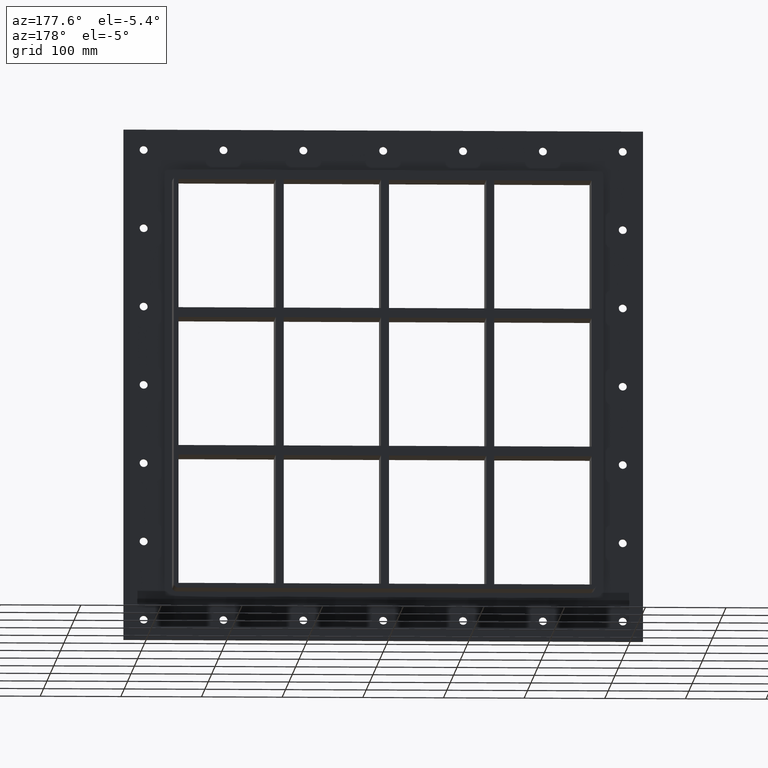
[diagram: clean part render]
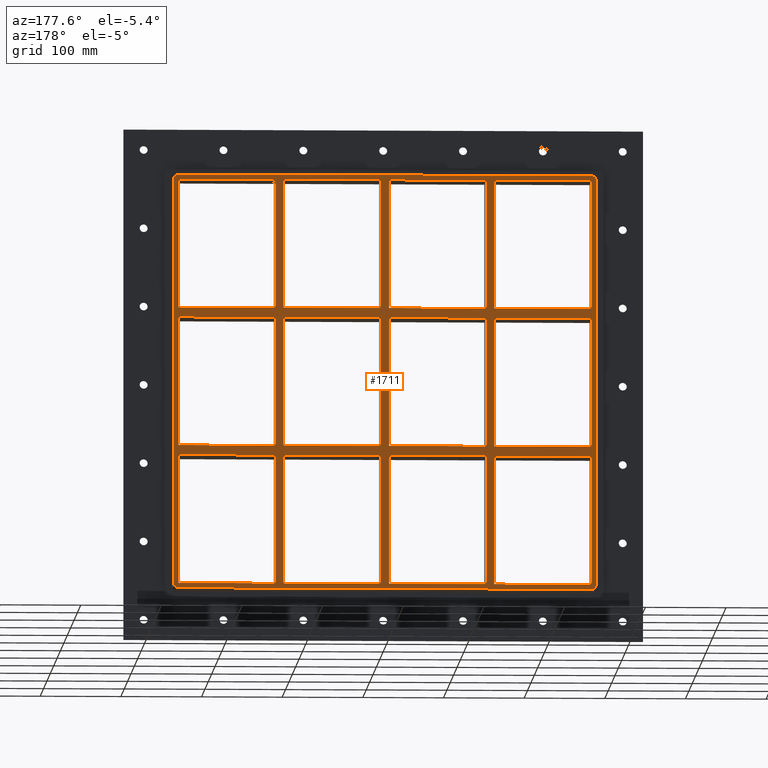
[diagram: same view with one face highlighted and labeled with its STEP entity id]
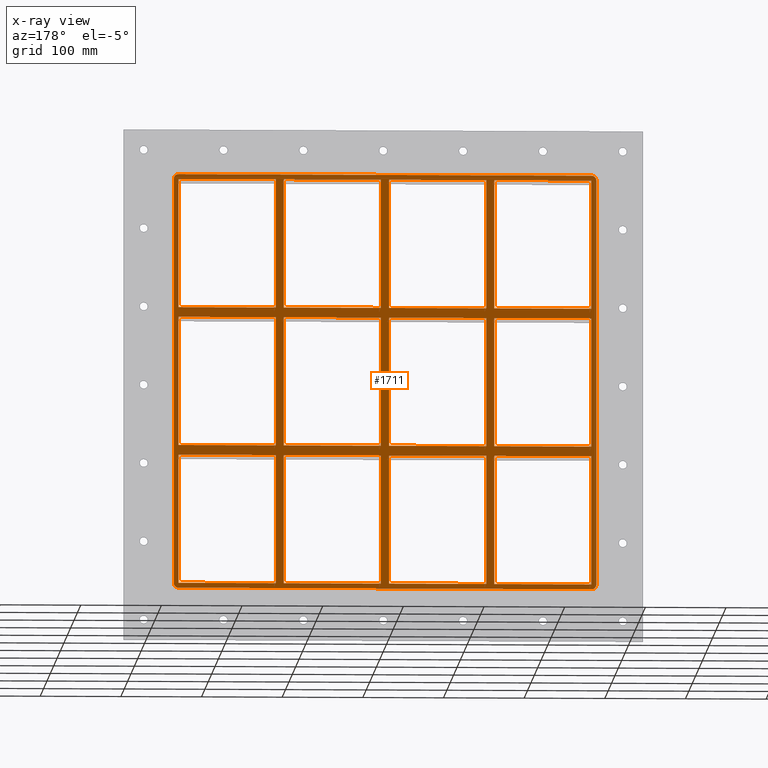
[diagram: x-ray of the same camera — body ghosted, the highlighted face saturated]
A machine part, auxiliary view. The second image highlights one B-rep face of the part: STEP entity #1711.
The next image is the same camera in x-ray: the body ghosted, the highlighted face saturated — about 0% of this face is hidden behind the body in this view.
In plain terms, the highlighted planar face has unit normal (0, 1, 0).
Its self-contained STEP definition (entity closure, byte-faithful):
#747=CARTESIAN_POINT('',(-135.50000000000136,57.0,79.749999999990564));
#748=VERTEX_POINT('',#747);
#763=CARTESIAN_POINT('',(-255.99999999999972,57.0,79.749999999990536));
#764=VERTEX_POINT('',#763);
#771=CARTESIAN_POINT('',(-135.50000000000136,57.0,79.749999999990564));
#772=DIRECTION('',(-1.0,0.0,0.0));
#773=VECTOR('',#772,120.49999999999841);
#774=LINE('',#771,#773);
#775=EDGE_CURVE('',#748,#764,#774,.T.);
#787=CARTESIAN_POINT('',(-5.00000000000135,57.0,79.749999999990621));
#788=VERTEX_POINT('',#787);
#803=CARTESIAN_POINT('',(-125.49999999999272,57.0,79.749999999990564));
#804=VERTEX_POINT('',#803);
#811=CARTESIAN_POINT('',(-5.000000000001364,57.0,79.749999999990621));
#812=DIRECTION('',(-1.0,0.0,0.0));
#813=VECTOR('',#812,120.49999999999136);
#814=LINE('',#811,#813);
#815=EDGE_CURVE('',#788,#804,#814,.T.);
#825=CARTESIAN_POINT('',(135.50000000000728,57.0,79.749999999990663));
#826=VERTEX_POINT('',#825);
#835=CARTESIAN_POINT('',(256.00000000000364,57.0,79.749999999990706));
#836=VERTEX_POINT('',#835);
#837=CARTESIAN_POINT('',(256.00000000000364,57.0,79.749999999990706));
#838=DIRECTION('',(-1.0,0.0,0.0));
#839=VECTOR('',#838,120.49999999999636);
#840=LINE('',#837,#839);
#841=EDGE_CURVE('',#836,#826,#840,.T.);
#867=CARTESIAN_POINT('',(125.49999999999864,57.0,79.749999999990663));
#868=VERTEX_POINT('',#867);
#883=CARTESIAN_POINT('',(5.000000000007283,57.0,79.749999999990621));
#884=VERTEX_POINT('',#883);
#891=CARTESIAN_POINT('',(125.49999999999864,57.0,79.749999999990663));
#892=DIRECTION('',(-1.0,0.0,0.0));
#893=VECTOR('',#892,120.49999999999136);
#894=LINE('',#891,#893);
#895=EDGE_CURVE('',#868,#884,#894,.T.);
#905=CARTESIAN_POINT('',(-135.50000000000136,57.0,91.750000000000043));
#906=VERTEX_POINT('',#905);
#915=CARTESIAN_POINT('',(-255.99999999999972,57.0,91.750000000000085));
#916=VERTEX_POINT('',#915);
#917=CARTESIAN_POINT('',(-255.99999999999972,57.0,91.750000000000085));
#918=DIRECTION('',(1.0,0.0,0.0));
#919=VECTOR('',#918,120.49999999999835);
#920=LINE('',#917,#919);
#921=EDGE_CURVE('',#916,#906,#920,.T.);
#947=CARTESIAN_POINT('',(135.50000000000728,57.0,91.750000000000085));
#948=VERTEX_POINT('',#947);
#963=CARTESIAN_POINT('',(255.99999999999989,57.0,91.750000000000085));
#964=VERTEX_POINT('',#963);
#971=CARTESIAN_POINT('',(135.50000000000733,57.0,91.750000000000085));
#972=DIRECTION('',(1.0,0.0,0.0));
#973=VECTOR('',#972,120.49999999999255);
#974=LINE('',#971,#973);
#975=EDGE_CURVE('',#948,#964,#974,.T.);
#985=CARTESIAN_POINT('',(-5.00000000000135,57.0,91.750000000000085));
#986=VERTEX_POINT('',#985);
#995=CARTESIAN_POINT('',(-125.49999999999272,57.0,91.750000000000085));
#996=VERTEX_POINT('',#995);
#997=CARTESIAN_POINT('',(-125.49999999999272,57.0,91.750000000000085));
#998=DIRECTION('',(1.0,0.0,0.0));
#999=VECTOR('',#998,120.49999999999139);
#1000=LINE('',#997,#999);
#1001=EDGE_CURVE('',#996,#986,#1000,.T.);
#1025=CARTESIAN_POINT('',(125.49999999999862,57.0,91.750000000000085));
#1026=VERTEX_POINT('',#1025);
#1035=CARTESIAN_POINT('',(5.000000000007283,57.0,91.750000000000085));
#1036=VERTEX_POINT('',#1035);
#1037=CARTESIAN_POINT('',(5.000000000007276,57.0,91.750000000000085));
#1038=DIRECTION('',(1.0,0.0,0.0));
#1039=VECTOR('',#1038,120.49999999999136);
#1040=LINE('',#1037,#1039);
#1041=EDGE_CURVE('',#1036,#1026,#1040,.T.);
#1066=CARTESIAN_POINT('',(-256.0,57.0,251.25));
#1067=VERTEX_POINT('',#1066);
#1068=CARTESIAN_POINT('',(-256.00000000000006,57.0,251.24999999999997));
#1069=DIRECTION('',(0.0,0.0,-1.0));
#1070=VECTOR('',#1069,159.49999999999989);
#1071=LINE('',#1068,#1070);
#1072=EDGE_CURVE('',#1067,#916,#1071,.T.);
#1097=CARTESIAN_POINT('',(255.99999999999989,57.0,-79.749999999999943));
#1098=VERTEX_POINT('',#1097);
#1099=CARTESIAN_POINT('',(256.0,57.0,-79.749999999999943));
#1100=DIRECTION('',(0.0,0.0,1.0));
#1101=VECTOR('',#1100,159.49999999999065);
#1102=LINE('',#1099,#1101);
#1103=EDGE_CURVE('',#1098,#836,#1102,.T.);
#1136=CARTESIAN_POINT('',(256.0,57.0,251.25));
#1137=VERTEX_POINT('',#1136);
#1144=CARTESIAN_POINT('',(256.0,57.0,91.750000000000085));
#1145=DIRECTION('',(0.0,0.0,1.0));
#1146=VECTOR('',#1145,159.49999999999991);
#1147=LINE('',#1144,#1146);
#1148=EDGE_CURVE('',#964,#1137,#1147,.T.);
#1167=CARTESIAN_POINT('',(125.49999999999862,57.0,251.25));
#1168=VERTEX_POINT('',#1167);
#1175=CARTESIAN_POINT('',(125.49999999999865,57.0,91.750000000000057));
#1176=DIRECTION('',(0.0,0.0,1.0));
#1177=VECTOR('',#1176,159.49999999999994);
#1178=LINE('',#1175,#1177);
#1179=EDGE_CURVE('',#1026,#1168,#1178,.T.);
#1190=CARTESIAN_POINT('',(135.50000000000728,57.0,251.25));
#1191=VERTEX_POINT('',#1190);
#1192=CARTESIAN_POINT('',(135.50000000000728,57.0,251.25));
#1193=DIRECTION('',(0.0,0.0,-1.0));
#1194=VECTOR('',#1193,159.49999999999991);
#1195=LINE('',#1192,#1194);
#1196=EDGE_CURVE('',#1191,#948,#1195,.T.);
#1229=CARTESIAN_POINT('',(-5.000000000001386,57.0,251.25));
#1230=VERTEX_POINT('',#1229);
#1237=CARTESIAN_POINT('',(-5.000000000001363,57.0,91.750000000000057));
#1238=DIRECTION('',(0.0,0.0,1.0));
#1239=VECTOR('',#1238,159.49999999999994);
#1240=LINE('',#1237,#1239);
#1241=EDGE_CURVE('',#986,#1230,#1240,.T.);
#1252=CARTESIAN_POINT('',(5.000000000007283,57.0,251.25));
#1253=VERTEX_POINT('',#1252);
#1254=CARTESIAN_POINT('',(5.000000000007283,57.0,251.25));
#1255=DIRECTION('',(0.0,0.0,-1.0));
#1256=VECTOR('',#1255,159.49999999999991);
#1257=LINE('',#1254,#1256);
#1258=EDGE_CURVE('',#1253,#1036,#1257,.T.);
#1291=CARTESIAN_POINT('',(-135.50000000000139,57.0,251.25));
#1292=VERTEX_POINT('',#1291);
#1299=CARTESIAN_POINT('',(-135.50000000000136,57.0,91.750000000000057));
#1300=DIRECTION('',(0.0,0.0,1.0));
#1301=VECTOR('',#1300,159.49999999999994);
#1302=LINE('',#1299,#1301);
#1303=EDGE_CURVE('',#906,#1292,#1302,.T.);
#1314=CARTESIAN_POINT('',(-135.50000000000134,57.0,-79.749999999999943));
#1315=VERTEX_POINT('',#1314);
#1316=CARTESIAN_POINT('',(-135.50000000000134,57.0,-79.749999999999943));
#1317=DIRECTION('',(0.0,0.0,1.0));
#1318=VECTOR('',#1317,159.49999999999051);
#1319=LINE('',#1316,#1318);
#1320=EDGE_CURVE('',#1315,#748,#1319,.T.);
#1345=CARTESIAN_POINT('',(-125.49999999999272,57.0,251.25));
#1346=VERTEX_POINT('',#1345);
#1347=CARTESIAN_POINT('',(-125.49999999999272,57.0,251.25));
#1348=DIRECTION('',(0.0,0.0,-1.0));
#1349=VECTOR('',#1348,159.49999999999991);
#1350=LINE('',#1347,#1349);
#1351=EDGE_CURVE('',#1346,#996,#1350,.T.);
#1370=CARTESIAN_POINT('',(-1.642082E-014,57.0,0.0));
#1371=DIRECTION('',(0.0,1.0,0.0));
#1372=DIRECTION('',(0.0,0.0,1.0));
#1373=AXIS2_PLACEMENT_3D('',#1370,#1371,#1372);
#1374=PLANE('',#1373);
#1375=CARTESIAN_POINT('',(256.0,57.0,-257.25));
#1376=VERTEX_POINT('',#1375);
#1377=CARTESIAN_POINT('',(262.0,57.0,-251.25));
#1378=VERTEX_POINT('',#1377);
#1379=CARTESIAN_POINT('',(256.0,57.0,-251.25));
#1380=DIRECTION('',(0.0,-1.0,0.0));
#1381=DIRECTION('',(0.707106781186548,0.0,-0.707106781186548));
#1382=AXIS2_PLACEMENT_3D('',#1379,#1380,#1381);
#1383=CIRCLE('',#1382,6.000000000000002);
#1384=EDGE_CURVE('',#1376,#1378,#1383,.T.);
#1385=ORIENTED_EDGE('',*,*,#1384,.F.);
#1386=CARTESIAN_POINT('',(-256.00000000000006,57.0,-257.25));
#1387=VERTEX_POINT('',#1386);
#1388=CARTESIAN_POINT('',(256.0,57.0,-257.25));
#1389=DIRECTION('',(-1.0,0.0,0.0));
#1390=VECTOR('',#1389,512.0);
#1391=LINE('',#1388,#1390);
#1392=EDGE_CURVE('',#1376,#1387,#1391,.T.);
#1393=ORIENTED_EDGE('',*,*,#1392,.T.);
#1394=CARTESIAN_POINT('',(-262.00000000000006,57.0,-251.25));
#1395=VERTEX_POINT('',#1394);
#1396=CARTESIAN_POINT('',(-256.00000000000006,57.0,-251.25));
#1397=DIRECTION('',(0.0,-1.0,0.0));
#1398=DIRECTION('',(-0.707106781186548,0.0,-0.707106781186548));
#1399=AXIS2_PLACEMENT_3D('',#1396,#1397,#1398);
#1400=CIRCLE('',#1399,6.000000000000002);
#1401=EDGE_CURVE('',#1395,#1387,#1400,.T.);
#1402=ORIENTED_EDGE('',*,*,#1401,.F.);
#1403=CARTESIAN_POINT('',(-262.00000000000006,57.0,251.25));
#1404=VERTEX_POINT('',#1403);
#1405=CARTESIAN_POINT('',(-262.00000000000006,57.0,-251.25));
#1406=DIRECTION('',(0.0,0.0,1.0));
#1407=VECTOR('',#1406,502.5);
#1408=LINE('',#1405,#1407);
#1409=EDGE_CURVE('',#1395,#1404,#1408,.T.);
#1410=ORIENTED_EDGE('',*,*,#1409,.T.);
#1411=CARTESIAN_POINT('',(-256.00000000000011,57.0,257.25));
#1412=VERTEX_POINT('',#1411);
#1413=CARTESIAN_POINT('',(-256.00000000000011,57.0,251.25));
#1414=DIRECTION('',(0.0,-1.0,0.0));
#1415=DIRECTION('',(-0.707106781186543,0.0,0.707106781186552));
#1416=AXIS2_PLACEMENT_3D('',#1413,#1414,#1415);
#1417=CIRCLE('',#1416,6.000000000000001);
#1418=EDGE_CURVE('',#1412,#1404,#1417,.T.);
#1419=ORIENTED_EDGE('',*,*,#1418,.F.);
#1420=CARTESIAN_POINT('',(256.0,57.0,257.25));
#1421=VERTEX_POINT('',#1420);
#1422=CARTESIAN_POINT('',(-256.00000000000006,57.0,257.25));
#1423=DIRECTION('',(1.0,0.0,0.0));
#1424=VECTOR('',#1423,512.0);
#1425=LINE('',#1422,#1424);
#1426=EDGE_CURVE('',#1412,#1421,#1425,.T.);
#1427=ORIENTED_EDGE('',*,*,#1426,.T.);
#1428=CARTESIAN_POINT('',(262.0,57.0,251.25));
#1429=VERTEX_POINT('',#1428);
#1430=CARTESIAN_POINT('',(256.0,57.0,251.25));
#1431=DIRECTION('',(0.0,-1.0,0.0));
#1432=DIRECTION('',(0.707106781186548,0.0,0.707106781186548));
#1433=AXIS2_PLACEMENT_3D('',#1430,#1431,#1432);
#1434=CIRCLE('',#1433,6.000000000000002);
#1435=EDGE_CURVE('',#1429,#1421,#1434,.T.);
#1436=ORIENTED_EDGE('',*,*,#1435,.F.);
#1437=CARTESIAN_POINT('',(262.0,57.0,251.25));
#1438=DIRECTION('',(0.0,0.0,-1.0));
#1439=VECTOR('',#1438,502.5);
#1440=LINE('',#1437,#1439);
#1441=EDGE_CURVE('',#1429,#1378,#1440,.T.);
#1442=ORIENTED_EDGE('',*,*,#1441,.T.);
#1443=EDGE_LOOP('',(#1385,#1393,#1402,#1410,#1419,#1427,#1436,#1442));
#1444=FACE_OUTER_BOUND('',#1443,.T.);
#1445=CARTESIAN_POINT('',(-255.99999999999972,57.0,-79.749999999999943));
#1446=VERTEX_POINT('',#1445);
#1447=CARTESIAN_POINT('',(-256.00000000000006,57.0,79.749999999990536));
#1448=DIRECTION('',(0.0,0.0,-1.0));
#1449=VECTOR('',#1448,159.49999999999048);
#1450=LINE('',#1447,#1449);
#1451=EDGE_CURVE('',#764,#1446,#1450,.T.);
#1452=ORIENTED_EDGE('',*,*,#1451,.T.);
#1453=CARTESIAN_POINT('',(-255.99999999999972,57.0,-79.749999999999943));
#1454=DIRECTION('',(1.0,0.0,0.0));
#1455=VECTOR('',#1454,120.49999999999841);
#1456=LINE('',#1453,#1455);
#1457=EDGE_CURVE('',#1446,#1315,#1456,.T.);
#1458=ORIENTED_EDGE('',*,*,#1457,.T.);
#1459=ORIENTED_EDGE('',*,*,#1320,.T.);
#1460=ORIENTED_EDGE('',*,*,#775,.T.);
#1461=EDGE_LOOP('',(#1452,#1458,#1459,#1460));
#1462=FACE_BOUND('',#1461,.T.);
#1463=ORIENTED_EDGE('',*,*,#1148,.T.);
#1464=CARTESIAN_POINT('',(256.0,57.0,251.25));
#1465=DIRECTION('',(-1.0,0.0,0.0));
#1466=VECTOR('',#1465,120.4999999999927);
#1467=LINE('',#1464,#1466);
#1468=EDGE_CURVE('',#1137,#1191,#1467,.T.);
#1469=ORIENTED_EDGE('',*,*,#1468,.T.);
#1470=ORIENTED_EDGE('',*,*,#1196,.T.);
#1471=ORIENTED_EDGE('',*,*,#975,.T.);
#1472=EDGE_LOOP('',(#1463,#1469,#1470,#1471));
#1473=FACE_BOUND('',#1472,.T.);
#1474=ORIENTED_EDGE('',*,*,#1179,.T.);
#1475=CARTESIAN_POINT('',(125.49999999999864,57.0,251.25));
#1476=DIRECTION('',(-1.0,0.0,0.0));
#1477=VECTOR('',#1476,120.49999999999136);
#1478=LINE('',#1475,#1477);
#1479=EDGE_CURVE('',#1168,#1253,#1478,.T.);
#1480=ORIENTED_EDGE('',*,*,#1479,.T.);
#1481=ORIENTED_EDGE('',*,*,#1258,.T.);
#1482=ORIENTED_EDGE('',*,*,#1041,.T.);
#1483=EDGE_LOOP('',(#1474,#1480,#1481,#1482));
#1484=FACE_BOUND('',#1483,.T.);
#1485=ORIENTED_EDGE('',*,*,#1241,.T.);
#1486=CARTESIAN_POINT('',(-5.000000000001393,57.0,251.25));
#1487=DIRECTION('',(-1.0,0.0,0.0));
#1488=VECTOR('',#1487,120.49999999999133);
#1489=LINE('',#1486,#1488);
#1490=EDGE_CURVE('',#1230,#1346,#1489,.T.);
#1491=ORIENTED_EDGE('',*,*,#1490,.T.);
#1492=ORIENTED_EDGE('',*,*,#1351,.T.);
#1493=ORIENTED_EDGE('',*,*,#1001,.T.);
#1494=EDGE_LOOP('',(#1485,#1491,#1492,#1493));
#1495=FACE_BOUND('',#1494,.T.);
#1496=ORIENTED_EDGE('',*,*,#841,.T.);
#1497=CARTESIAN_POINT('',(135.50000000000728,57.0,-79.749999999999943));
#1498=VERTEX_POINT('',#1497);
#1499=CARTESIAN_POINT('',(135.50000000000728,57.0,79.749999999990678));
#1500=DIRECTION('',(0.0,0.0,-1.0));
#1501=VECTOR('',#1500,159.49999999999062);
#1502=LINE('',#1499,#1501);
#1503=EDGE_CURVE('',#826,#1498,#1502,.T.);
#1504=ORIENTED_EDGE('',*,*,#1503,.T.);
#1505=CARTESIAN_POINT('',(135.50000000000733,57.0,-79.749999999999943));
#1506=DIRECTION('',(1.0,0.0,0.0));
#1507=VECTOR('',#1506,120.49999999999255);
#1508=LINE('',#1505,#1507);
#1509=EDGE_CURVE('',#1498,#1098,#1508,.T.);
#1510=ORIENTED_EDGE('',*,*,#1509,.T.);
#1511=ORIENTED_EDGE('',*,*,#1103,.T.);
#1512=EDGE_LOOP('',(#1496,#1504,#1510,#1511));
#1513=FACE_BOUND('',#1512,.T.);
#1514=ORIENTED_EDGE('',*,*,#895,.T.);
#1515=CARTESIAN_POINT('',(5.000000000007283,57.0,-79.749999999999943));
#1516=VERTEX_POINT('',#1515);
#1517=CARTESIAN_POINT('',(5.000000000007283,57.0,79.749999999990621));
#1518=DIRECTION('',(0.0,0.0,-1.0));
#1519=VECTOR('',#1518,159.49999999999056);
#1520=LINE('',#1517,#1519);
#1521=EDGE_CURVE('',#884,#1516,#1520,.T.);
#1522=ORIENTED_EDGE('',*,*,#1521,.T.);
#1523=CARTESIAN_POINT('',(125.49999999999868,57.0,-79.749999999999943));
#1524=VERTEX_POINT('',#1523);
#1525=CARTESIAN_POINT('',(5.000000000007276,57.0,-79.749999999999943));
#1526=DIRECTION('',(1.0,0.0,0.0));
#1527=VECTOR('',#1526,120.49999999999142);
#1528=LINE('',#1525,#1527);
#1529=EDGE_CURVE('',#1516,#1524,#1528,.T.);
#1530=ORIENTED_EDGE('',*,*,#1529,.T.);
#1531=CARTESIAN_POINT('',(125.49999999999866,57.0,-79.749999999999943));
#1532=DIRECTION('',(0.0,0.0,1.0));
#1533=VECTOR('',#1532,159.49999999999056);
#1534=LINE('',#1531,#1533);
#1535=EDGE_CURVE('',#1524,#868,#1534,.T.);
#1536=ORIENTED_EDGE('',*,*,#1535,.T.);
#1537=EDGE_LOOP('',(#1514,#1522,#1530,#1536));
#1538=FACE_BOUND('',#1537,.T.);
#1539=ORIENTED_EDGE('',*,*,#815,.T.);
#1540=CARTESIAN_POINT('',(-125.49999999999272,57.0,-79.749999999999943));
#1541=VERTEX_POINT('',#1540);
#1542=CARTESIAN_POINT('',(-125.49999999999272,57.0,79.749999999990564));
#1543=DIRECTION('',(0.0,0.0,-1.0));
#1544=VECTOR('',#1543,159.49999999999051);
#1545=LINE('',#1542,#1544);
#1546=EDGE_CURVE('',#804,#1541,#1545,.T.);
#1547=ORIENTED_EDGE('',*,*,#1546,.T.);
#1548=CARTESIAN_POINT('',(-5.000000000001339,57.0,-79.749999999999943));
#1549=VERTEX_POINT('',#1548);
#1550=CARTESIAN_POINT('',(-125.49999999999272,57.0,-79.749999999999943));
#1551=DIRECTION('',(1.0,0.0,0.0));
#1552=VECTOR('',#1551,120.49999999999139);
#1553=LINE('',#1550,#1552);
#1554=EDGE_CURVE('',#1541,#1549,#1553,.T.);
#1555=ORIENTED_EDGE('',*,*,#1554,.T.);
#1556=CARTESIAN_POINT('',(-5.000000000001339,57.0,-79.749999999999943));
#1557=DIRECTION('',(0.0,0.0,1.0));
#1558=VECTOR('',#1557,159.49999999999056);
#1559=LINE('',#1556,#1558);
#1560=EDGE_CURVE('',#1549,#788,#1559,.T.);
#1561=ORIENTED_EDGE('',*,*,#1560,.T.);
#1562=EDGE_LOOP('',(#1539,#1547,#1555,#1561));
#1563=FACE_BOUND('',#1562,.T.);
#1564=CARTESIAN_POINT('',(-255.99999999999972,57.0,-91.750000000009493));
#1565=VERTEX_POINT('',#1564);
#1566=CARTESIAN_POINT('',(-256.0,57.0,-251.25000000000006));
#1567=VERTEX_POINT('',#1566);
#1568=CARTESIAN_POINT('',(-256.00000000000006,57.0,-91.750000000009493));
#1569=DIRECTION('',(0.0,0.0,-1.0));
#1570=VECTOR('',#1569,159.49999999999056);
#1571=LINE('',#1568,#1570);
#1572=EDGE_CURVE('',#1565,#1567,#1571,.T.);
#1573=ORIENTED_EDGE('',*,*,#1572,.T.);
#1574=CARTESIAN_POINT('',(-135.50000000000131,57.0,-251.25000000000006));
#1575=VERTEX_POINT('',#1574);
#1576=CARTESIAN_POINT('',(-256.00000000000006,57.0,-251.25000000000006));
#1577=DIRECTION('',(1.0,0.0,0.0));
#1578=VECTOR('',#1577,120.49999999999875);
#1579=LINE('',#1576,#1578);
#1580=EDGE_CURVE('',#1567,#1575,#1579,.T.);
#1581=ORIENTED_EDGE('',*,*,#1580,.T.);
#1582=CARTESIAN_POINT('',(-135.50000000000131,57.0,-91.750000000009464));
#1583=VERTEX_POINT('',#1582);
#1584=CARTESIAN_POINT('',(-135.50000000000131,57.0,-251.25000000000006));
#1585=DIRECTION('',(0.0,0.0,1.0));
#1586=VECTOR('',#1585,159.49999999999062);
#1587=LINE('',#1584,#1586);
#1588=EDGE_CURVE('',#1575,#1583,#1587,.T.);
#1589=ORIENTED_EDGE('',*,*,#1588,.T.);
#1590=CARTESIAN_POINT('',(-135.50000000000131,57.0,-91.750000000009464));
#1591=DIRECTION('',(-1.0,0.0,0.0));
#1592=VECTOR('',#1591,120.49999999999847);
#1593=LINE('',#1590,#1592);
#1594=EDGE_CURVE('',#1583,#1565,#1593,.T.);
#1595=ORIENTED_EDGE('',*,*,#1594,.T.);
#1596=EDGE_LOOP('',(#1573,#1581,#1589,#1595));
#1597=FACE_BOUND('',#1596,.T.);
#1598=CARTESIAN_POINT('',(-5.000000000001315,57.0,-251.25000000000006));
#1599=VERTEX_POINT('',#1598);
#1600=CARTESIAN_POINT('',(-5.000000000001337,57.0,-91.750000000009408));
#1601=VERTEX_POINT('',#1600);
#1602=CARTESIAN_POINT('',(-5.000000000001315,57.0,-251.25000000000006));
#1603=DIRECTION('',(0.0,0.0,1.0));
#1604=VECTOR('',#1603,159.49999999999068);
#1605=LINE('',#1602,#1604);
#1606=EDGE_CURVE('',#1599,#1601,#1605,.T.);
#1607=ORIENTED_EDGE('',*,*,#1606,.T.);
#1608=CARTESIAN_POINT('',(-125.49999999999272,57.0,-91.750000000009436));
#1609=VERTEX_POINT('',#1608);
#1610=CARTESIAN_POINT('',(-5.000000000001364,57.0,-91.750000000009408));
#1611=DIRECTION('',(-1.0,0.0,0.0));
#1612=VECTOR('',#1611,120.49999999999136);
#1613=LINE('',#1610,#1612);
#1614=EDGE_CURVE('',#1601,#1609,#1613,.T.);
#1615=ORIENTED_EDGE('',*,*,#1614,.T.);
#1616=CARTESIAN_POINT('',(-125.49999999999272,57.0,-251.24999999998437));
#1617=VERTEX_POINT('',#1616);
#1618=CARTESIAN_POINT('',(-125.49999999999272,57.0,-91.750000000009436));
#1619=DIRECTION('',(0.0,0.0,-1.0));
#1620=VECTOR('',#1619,159.49999999997493);
#1621=LINE('',#1618,#1620);
#1622=EDGE_CURVE('',#1609,#1617,#1621,.T.);
#1623=ORIENTED_EDGE('',*,*,#1622,.T.);
#1624=CARTESIAN_POINT('',(-125.49999999999272,57.0,-251.25000000000006));
#1625=DIRECTION('',(1.0,0.0,0.0));
#1626=VECTOR('',#1625,120.49999999999142);
#1627=LINE('',#1624,#1626);
#1628=EDGE_CURVE('',#1617,#1599,#1627,.T.);
#1629=ORIENTED_EDGE('',*,*,#1628,.T.);
#1630=EDGE_LOOP('',(#1607,#1615,#1623,#1629));
#1631=FACE_BOUND('',#1630,.T.);
#1632=CARTESIAN_POINT('',(125.49999999999869,57.0,-251.25000000000006));
#1633=VERTEX_POINT('',#1632);
#1634=CARTESIAN_POINT('',(125.49999999999868,57.0,-91.750000000009365));
#1635=VERTEX_POINT('',#1634);
#1636=CARTESIAN_POINT('',(125.49999999999869,57.0,-251.25000000000006));
#1637=DIRECTION('',(0.0,0.0,1.0));
#1638=VECTOR('',#1637,159.49999999999071);
#1639=LINE('',#1636,#1638);
#1640=EDGE_CURVE('',#1633,#1635,#1639,.T.);
#1641=ORIENTED_EDGE('',*,*,#1640,.T.);
#1642=CARTESIAN_POINT('',(5.000000000007283,57.0,-91.750000000009422));
#1643=VERTEX_POINT('',#1642);
#1644=CARTESIAN_POINT('',(125.49999999999866,57.0,-91.750000000009365));
#1645=DIRECTION('',(-1.0,0.0,0.0));
#1646=VECTOR('',#1645,120.49999999999139);
#1647=LINE('',#1644,#1646);
#1648=EDGE_CURVE('',#1635,#1643,#1647,.T.);
#1649=ORIENTED_EDGE('',*,*,#1648,.T.);
#1650=CARTESIAN_POINT('',(5.000000000007283,57.0,-251.24999999998437));
#1651=VERTEX_POINT('',#1650);
#1652=CARTESIAN_POINT('',(5.000000000007283,57.0,-91.750000000009436));
#1653=DIRECTION('',(0.0,0.0,-1.0));
#1654=VECTOR('',#1653,159.49999999997493);
#1655=LINE('',#1652,#1654);
#1656=EDGE_CURVE('',#1643,#1651,#1655,.T.);
#1657=ORIENTED_EDGE('',*,*,#1656,.T.);
#1658=CARTESIAN_POINT('',(5.000000000007276,57.0,-251.25000000000006));
#1659=DIRECTION('',(1.0,0.0,0.0));
#1660=VECTOR('',#1659,120.49999999999142);
#1661=LINE('',#1658,#1660);
#1662=EDGE_CURVE('',#1651,#1633,#1661,.T.);
#1663=ORIENTED_EDGE('',*,*,#1662,.T.);
#1664=EDGE_LOOP('',(#1641,#1649,#1657,#1663));
#1665=FACE_BOUND('',#1664,.T.);
#1666=ORIENTED_EDGE('',*,*,#921,.T.);
#1667=ORIENTED_EDGE('',*,*,#1303,.T.);
#1668=CARTESIAN_POINT('',(-135.50000000000139,57.0,251.25));
#1669=DIRECTION('',(-1.0,0.0,0.0));
#1670=VECTOR('',#1669,120.49999999999861);
#1671=LINE('',#1668,#1670);
#1672=EDGE_CURVE('',#1292,#1067,#1671,.T.);
#1673=ORIENTED_EDGE('',*,*,#1672,.T.);
#1674=ORIENTED_EDGE('',*,*,#1072,.T.);
#1675=EDGE_LOOP('',(#1666,#1667,#1673,#1674));
#1676=FACE_BOUND('',#1675,.T.);
#1677=CARTESIAN_POINT('',(135.50000000000728,57.0,-251.24999999998437));
#1678=VERTEX_POINT('',#1677);
#1679=CARTESIAN_POINT('',(256.0,57.0,-251.25000000000006));
#1680=VERTEX_POINT('',#1679);
#1681=CARTESIAN_POINT('',(135.50000000000728,57.0,-251.25000000000006));
#1682=DIRECTION('',(1.0,0.0,0.0));
#1683=VECTOR('',#1682,120.49999999999272);
#1684=LINE('',#1681,#1683);
#1685=EDGE_CURVE('',#1678,#1680,#1684,.T.);
#1686=ORIENTED_EDGE('',*,*,#1685,.T.);
#1687=CARTESIAN_POINT('',(256.00000000000364,57.0,-91.750000000009322));
#1688=VERTEX_POINT('',#1687);
#1689=CARTESIAN_POINT('',(256.0,57.0,-251.25000000000006));
#1690=DIRECTION('',(0.0,0.0,1.0));
#1691=VECTOR('',#1690,159.49999999999073);
#1692=LINE('',#1689,#1691);
#1693=EDGE_CURVE('',#1680,#1688,#1692,.T.);
#1694=ORIENTED_EDGE('',*,*,#1693,.T.);
#1695=CARTESIAN_POINT('',(135.50000000000728,57.0,-91.750000000009422));
#1696=VERTEX_POINT('',#1695);
#1697=CARTESIAN_POINT('',(256.00000000000364,57.0,-91.750000000009322));
#1698=DIRECTION('',(-1.0,0.0,0.0));
#1699=VECTOR('',#1698,120.49999999999636);
#1700=LINE('',#1697,#1699);
#1701=EDGE_CURVE('',#1688,#1696,#1700,.T.);
#1702=ORIENTED_EDGE('',*,*,#1701,.T.);
#1703=CARTESIAN_POINT('',(135.50000000000728,57.0,-91.750000000009436));
#1704=DIRECTION('',(0.0,0.0,-1.0));
#1705=VECTOR('',#1704,159.49999999997493);
#1706=LINE('',#1703,#1705);
#1707=EDGE_CURVE('',#1696,#1678,#1706,.T.);
#1708=ORIENTED_EDGE('',*,*,#1707,.T.);
#1709=EDGE_LOOP('',(#1686,#1694,#1702,#1708));
#1710=FACE_BOUND('',#1709,.T.);
#1711=ADVANCED_FACE('',(#1444,#1462,#1473,#1484,#1495,#1513,#1538,#1563,#1597,#1631,#1665,#1676,#1710),#1374,.T.);